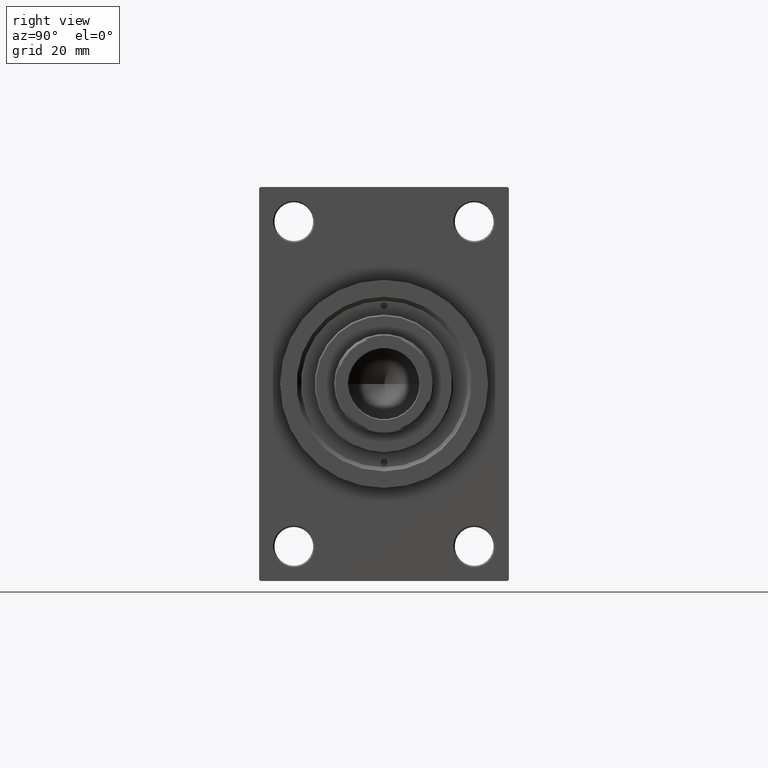
[diagram: clean part render]
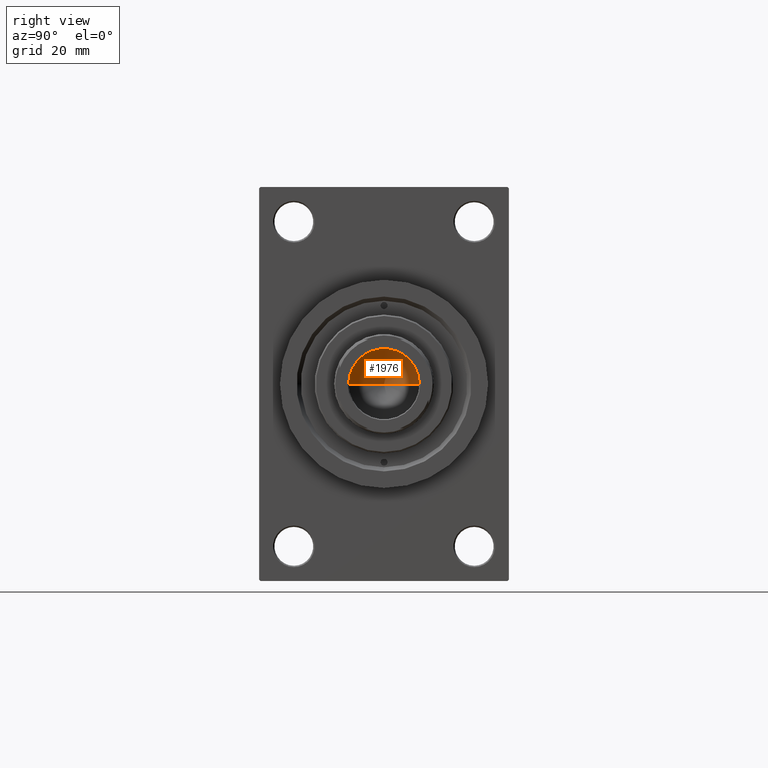
[diagram: same view with one face highlighted and labeled with its STEP entity id]
A machine part, right view. The second image highlights one B-rep face of the part: STEP entity #1976.
In plain terms, the highlighted conical surface has half-angle 59 deg.
Its self-contained STEP definition (entity closure, byte-faithful):
#1976 = ADVANCED_FACE ( 'NONE', ( #23416 ), #13545, .F. ) ;
#2039 = VECTOR ( 'NONE', #18605, 1000.000000000000000 ) ;
#2049 = CARTESIAN_POINT ( 'NONE',  ( 0.000000000000000000, 0.000000000000000000, 105.0000000000000284 ) ) ;
#2425 = CARTESIAN_POINT ( 'NONE',  ( -1.410643066818227497E-14, 0.000000000000000000, 97.33902710739862130 ) ) ;
#2908 = AXIS2_PLACEMENT_3D ( 'NONE', #31495, #27432, #27676 ) ;
#4925 = VERTEX_POINT ( 'NONE', #30896 ) ;
#4939 = DIRECTION ( 'NONE',  ( 1.000000000000000000, 0.000000000000000000, 0.000000000000000000 ) ) ;
#9248 = DIRECTION ( 'NONE',  ( -0.000000000000000000, -0.000000000000000000, 1.000000000000000000 ) ) ;
#12230 = DIRECTION ( 'NONE',  ( 0.8571673007021117785, 0.000000000000000000, 0.5150380749100550437 ) ) ;
#13545 = CONICAL_SURFACE ( 'NONE', #20443, 12.74999999999998934, 1.029744258676653423 ) ;
#18605 = DIRECTION ( 'NONE',  ( -0.8571673007021117785, 1.049727191138617956E-16, 0.5150380749100550437 ) ) ;
#20236 = CARTESIAN_POINT ( 'NONE',  ( 12.74999999999998934, 0.000000000000000000, 105.0000000000000284 ) ) ;
#20443 = AXIS2_PLACEMENT_3D ( 'NONE', #2049, #9248, #4939 ) ;
#22303 = VERTEX_POINT ( 'NONE', #2425 ) ;
#23416 = FACE_OUTER_BOUND ( 'NONE', #28793, .T. ) ;
#25902 = LINE ( 'NONE', #40521, #46033 ) ;
#27432 = DIRECTION ( 'NONE',  ( -0.000000000000000000, -0.000000000000000000, 1.000000000000000000 ) ) ;
#27676 = DIRECTION ( 'NONE',  ( 1.000000000000000000, 0.000000000000000000, 0.000000000000000000 ) ) ;
#28793 = EDGE_LOOP ( 'NONE', ( #32567, #43786, #37404 ) ) ;
#29147 = LINE ( 'NONE', #43784, #2039 ) ;
#30581 = CIRCLE ( 'NONE', #2908, 12.74999999999998934 ) ;
#30896 = CARTESIAN_POINT ( 'NONE',  ( -12.74999999999998934, 1.561424668912873928E-15, 105.0000000000000284 ) ) ;
#31495 = CARTESIAN_POINT ( 'NONE',  ( 0.000000000000000000, 0.000000000000000000, 105.0000000000000284 ) ) ;
#32567 = ORIENTED_EDGE ( 'NONE', *, *, #47222, .F. ) ;
#33793 = EDGE_CURVE ( 'NONE', #22303, #4925, #29147, .T. ) ;
#37404 = ORIENTED_EDGE ( 'NONE', *, *, #40421, .T. ) ;
#38660 = VERTEX_POINT ( 'NONE', #20236 ) ;
#40421 = EDGE_CURVE ( 'NONE', #4925, #38660, #30581, .T. ) ;
#40521 = CARTESIAN_POINT ( 'NONE',  ( 12.74999999999998934, 0.000000000000000000, 105.0000000000000284 ) ) ;
#43784 = CARTESIAN_POINT ( 'NONE',  ( -12.74999999999998934, 1.561424668912873928E-15, 105.0000000000000284 ) ) ;
#43786 = ORIENTED_EDGE ( 'NONE', *, *, #33793, .T. ) ;
#46033 = VECTOR ( 'NONE', #12230, 1000.000000000000000 ) ;
#47222 = EDGE_CURVE ( 'NONE', #22303, #38660, #25902, .T. ) ;